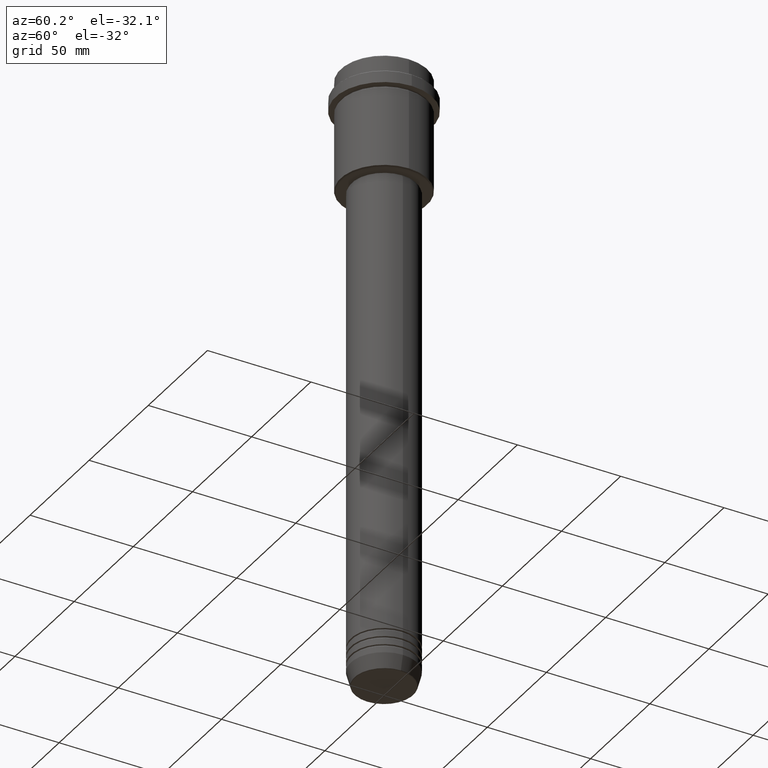
[diagram: clean part render]
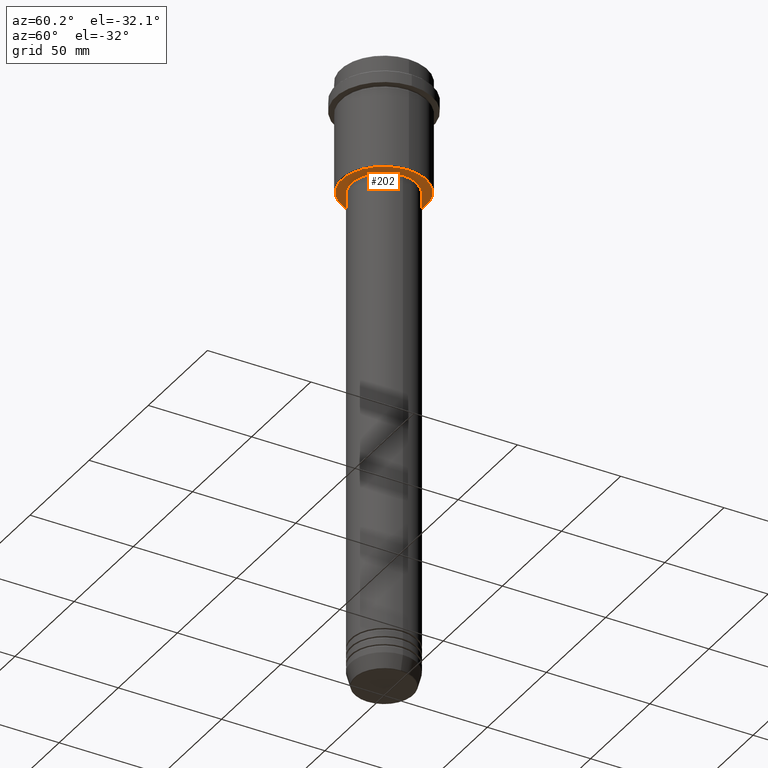
[diagram: same view with one face highlighted and labeled with its STEP entity id]
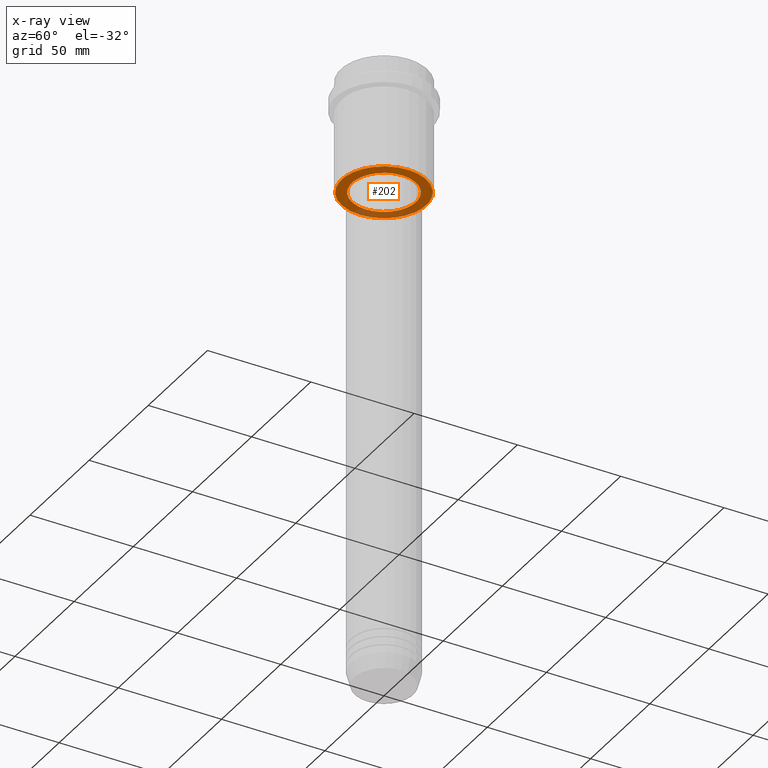
[diagram: x-ray of the same camera — body ghosted, the highlighted face saturated]
A machine part, auxiliary view. The second image highlights one B-rep face of the part: STEP entity #202.
The next image is the same camera in x-ray: the body ghosted, the highlighted face saturated — about 21% of this face is hidden behind the body in this view.
In plain terms, the highlighted planar face has unit normal (0, 0, -1).
Its self-contained STEP definition (entity closure, byte-faithful):
#2 = DIRECTION ( 'NONE',  ( 1.000000000000000000, 0.000000000000000000, 0.000000000000000000 ) ) ;
#6 = CIRCLE ( 'NONE', #739, 20.49999999999996447 ) ;
#41 = DIRECTION ( 'NONE',  ( -1.000000000000000000, 0.000000000000000000, 0.000000000000000000 ) ) ;
#57 = ORIENTED_EDGE ( 'NONE', *, *, #74, .T. ) ;
#74 = EDGE_CURVE ( 'NONE', #340, #1123, #560, .T. ) ;
#92 = CARTESIAN_POINT ( 'NONE',  ( -20.49999999999996447, 2.541142108230755902E-15, -54.99999999999997868 ) ) ;
#153 = ORIENTED_EDGE ( 'NONE', *, *, #798, .T. ) ;
#177 = CIRCLE ( 'NONE', #975, 15.49999999999999645 ) ;
#202 = ADVANCED_FACE ( 'NONE', ( #1326, #564 ), #1319, .T. ) ;
#277 = CARTESIAN_POINT ( 'NONE',  ( 0.000000000000000000, 0.000000000000000000, -54.99999999999997868 ) ) ;
#326 = CIRCLE ( 'NONE', #617, 20.49999999999996447 ) ;
#340 = VERTEX_POINT ( 'NONE', #587 ) ;
#351 = DIRECTION ( 'NONE',  ( 0.000000000000000000, 0.000000000000000000, -1.000000000000000000 ) ) ;
#366 = DIRECTION ( 'NONE',  ( 1.000000000000000000, 0.000000000000000000, 0.000000000000000000 ) ) ;
#423 = CARTESIAN_POINT ( 'NONE',  ( 0.000000000000000000, 0.000000000000000000, -54.99999999999996447 ) ) ;
#457 = VERTEX_POINT ( 'NONE', #1167 ) ;
#560 = CIRCLE ( 'NONE', #1377, 15.49999999999999645 ) ;
#564 = FACE_BOUND ( 'NONE', #583, .T. ) ;
#583 = EDGE_LOOP ( 'NONE', ( #1051, #57 ) ) ;
#587 = CARTESIAN_POINT ( 'NONE',  ( -15.49999999999999645, 1.898202538678397163E-15, -54.99999999999996447 ) ) ;
#617 = AXIS2_PLACEMENT_3D ( 'NONE', #277, #708, #41 ) ;
#626 = EDGE_LOOP ( 'NONE', ( #153, #821 ) ) ;
#693 = CARTESIAN_POINT ( 'NONE',  ( 0.000000000000000000, 21.00000000000000000, -54.99999999999997868 ) ) ;
#708 = DIRECTION ( 'NONE',  ( 0.000000000000000000, 0.000000000000000000, -1.000000000000000000 ) ) ;
#739 = AXIS2_PLACEMENT_3D ( 'NONE', #1308, #1315, #777 ) ;
#770 = VERTEX_POINT ( 'NONE', #92 ) ;
#777 = DIRECTION ( 'NONE',  ( -1.000000000000000000, 0.000000000000000000, 0.000000000000000000 ) ) ;
#798 = EDGE_CURVE ( 'NONE', #457, #770, #6, .T. ) ;
#821 = ORIENTED_EDGE ( 'NONE', *, *, #1309, .T. ) ;
#912 = CARTESIAN_POINT ( 'NONE',  ( 0.000000000000000000, 0.000000000000000000, -54.99999999999996447 ) ) ;
#941 = EDGE_CURVE ( 'NONE', #1123, #340, #177, .T. ) ;
#975 = AXIS2_PLACEMENT_3D ( 'NONE', #912, #1339, #366 ) ;
#1051 = ORIENTED_EDGE ( 'NONE', *, *, #941, .T. ) ;
#1084 = DIRECTION ( 'NONE',  ( -0.000000000000000000, -0.000000000000000000, 1.000000000000000000 ) ) ;
#1123 = VERTEX_POINT ( 'NONE', #1126 ) ;
#1126 = CARTESIAN_POINT ( 'NONE',  ( 15.49999999999999645, 0.000000000000000000, -54.99999999999996447 ) ) ;
#1167 = CARTESIAN_POINT ( 'NONE',  ( 20.49999999999996447, 0.000000000000000000, -54.99999999999997868 ) ) ;
#1239 = DIRECTION ( 'NONE',  ( -1.000000000000000000, 0.000000000000000000, -0.000000000000000000 ) ) ;
#1248 = AXIS2_PLACEMENT_3D ( 'NONE', #693, #351, #1239 ) ;
#1308 = CARTESIAN_POINT ( 'NONE',  ( 0.000000000000000000, 0.000000000000000000, -54.99999999999997868 ) ) ;
#1309 = EDGE_CURVE ( 'NONE', #770, #457, #326, .T. ) ;
#1315 = DIRECTION ( 'NONE',  ( 0.000000000000000000, 0.000000000000000000, -1.000000000000000000 ) ) ;
#1319 = PLANE ( 'NONE',  #1248 ) ;
#1326 = FACE_OUTER_BOUND ( 'NONE', #626, .T. ) ;
#1339 = DIRECTION ( 'NONE',  ( -0.000000000000000000, -0.000000000000000000, 1.000000000000000000 ) ) ;
#1377 = AXIS2_PLACEMENT_3D ( 'NONE', #423, #1084, #2 ) ;